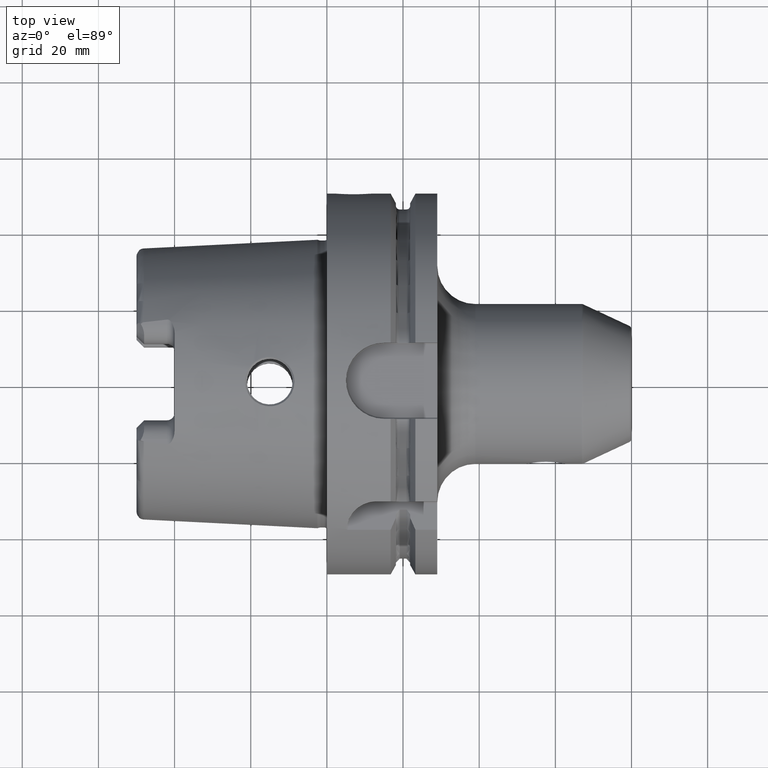
[diagram: clean part render]
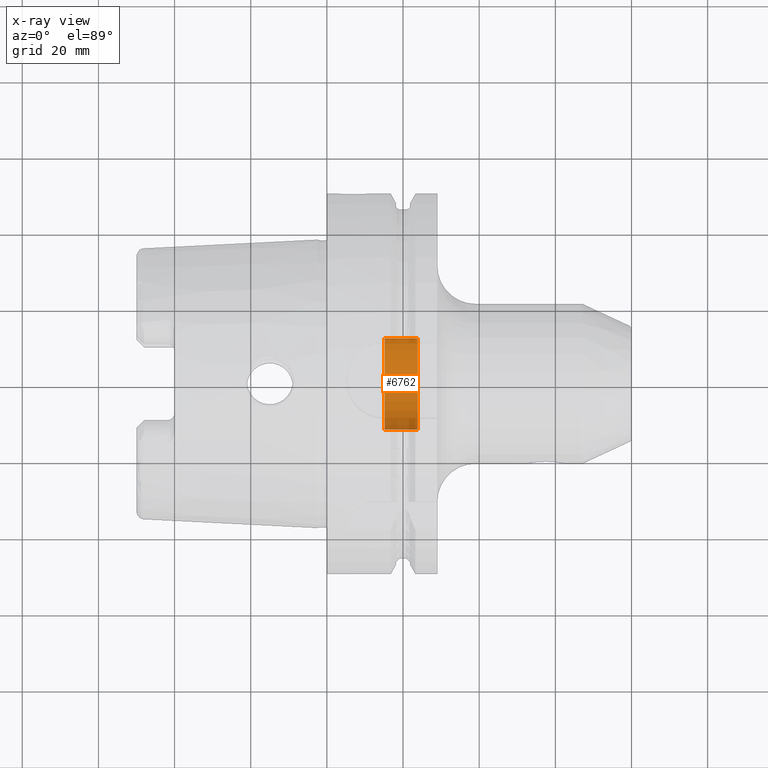
[diagram: x-ray — body ghosted, one internal face saturated and labeled with its STEP entity id]
A machine part, top view, then the same camera in x-ray: the body is ghosted and one INTERNAL B-rep face — a face not visible from any outside direction — is saturated and labeled: STEP entity #6762.
In plain terms, the highlighted cylindrical surface (partial cylindrical patch) has radius 12 mm, axis along (1, 0, 0).
Its self-contained STEP definition (entity closure, byte-faithful):
#6675=CARTESIAN_POINT('',(1.51625E1,0.E0,0.E0));
#6676=DIRECTION('',(1.E0,0.E0,0.E0));
#6677=DIRECTION('',(0.E0,-1.E0,0.E0));
#6678=AXIS2_PLACEMENT_3D('',#6675,#6676,#6677);
#6680=CARTESIAN_POINT('',(2.385262794416E1,0.E0,0.E0));
#6681=DIRECTION('',(-1.E0,0.E0,0.E0));
#6682=DIRECTION('',(0.E0,1.E0,0.E0));
#6683=AXIS2_PLACEMENT_3D('',#6680,#6681,#6682);
#6700=DIRECTION('',(-1.E0,0.E0,0.E0));
#6701=VECTOR('',#6700,8.690127944163E0);
#6702=CARTESIAN_POINT('',(2.385262794416E1,-1.2E1,0.E0));
#6703=LINE('',#6702,#6701);
#6709=DIRECTION('',(-1.E0,0.E0,0.E0));
#6710=VECTOR('',#6709,8.690127944163E0);
#6711=CARTESIAN_POINT('',(2.385262794416E1,1.2E1,0.E0));
#6712=LINE('',#6711,#6710);
#6735=CARTESIAN_POINT('',(1.51625E1,-1.2E1,0.E0));
#6736=CARTESIAN_POINT('',(1.51625E1,1.2E1,0.E0));
#6737=VERTEX_POINT('',#6735);
#6738=VERTEX_POINT('',#6736);
#6739=CARTESIAN_POINT('',(2.385262794416E1,-1.2E1,0.E0));
#6740=CARTESIAN_POINT('',(2.385262794416E1,1.2E1,0.E0));
#6741=VERTEX_POINT('',#6739);
#6742=VERTEX_POINT('',#6740);
#6747=CARTESIAN_POINT('',(-4.847666062263E0,0.E0,0.E0));
#6748=DIRECTION('',(1.E0,0.E0,0.E0));
#6749=DIRECTION('',(0.E0,-1.E0,0.E0));
#6750=AXIS2_PLACEMENT_3D('',#6747,#6748,#6749);
#6751=CYLINDRICAL_SURFACE('',#6750,1.2E1);
#6753=ORIENTED_EDGE('',*,*,#6752,.T.);
#6755=ORIENTED_EDGE('',*,*,#6754,.F.);
#6757=ORIENTED_EDGE('',*,*,#6756,.T.);
#6759=ORIENTED_EDGE('',*,*,#6758,.T.);
#6760=EDGE_LOOP('',(#6753,#6755,#6757,#6759));
#6761=FACE_OUTER_BOUND('',#6760,.F.);
#6762=ADVANCED_FACE('',(#6761),#6751,.F.);
#6679=CIRCLE('',#6678,1.2E1);
#6684=CIRCLE('',#6683,1.2E1);
#6752=EDGE_CURVE('',#6737,#6738,#6679,.T.);
#6754=EDGE_CURVE('',#6742,#6738,#6712,.T.);
#6756=EDGE_CURVE('',#6742,#6741,#6684,.T.);
#6758=EDGE_CURVE('',#6741,#6737,#6703,.T.);